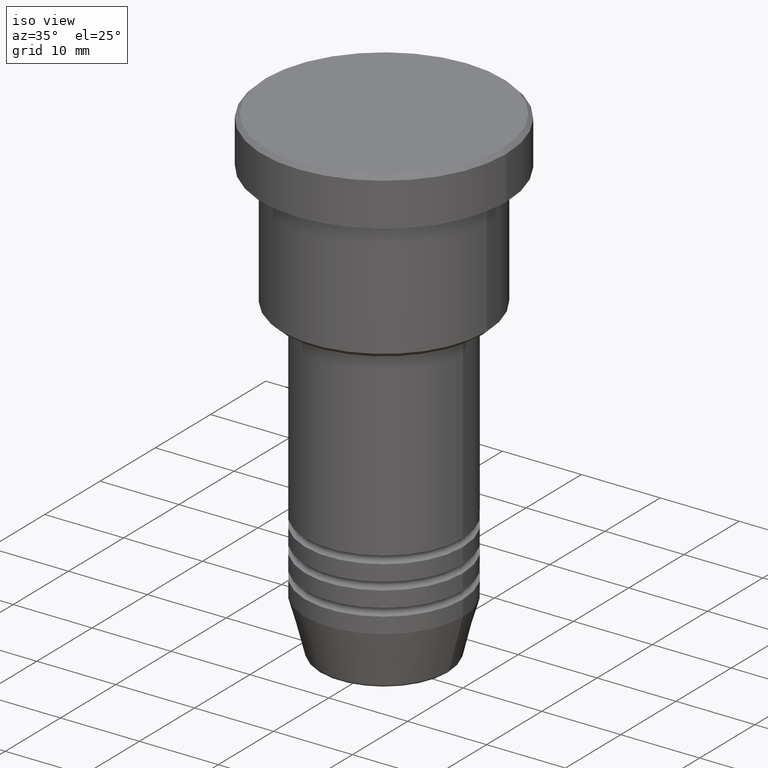
[diagram: clean part render]
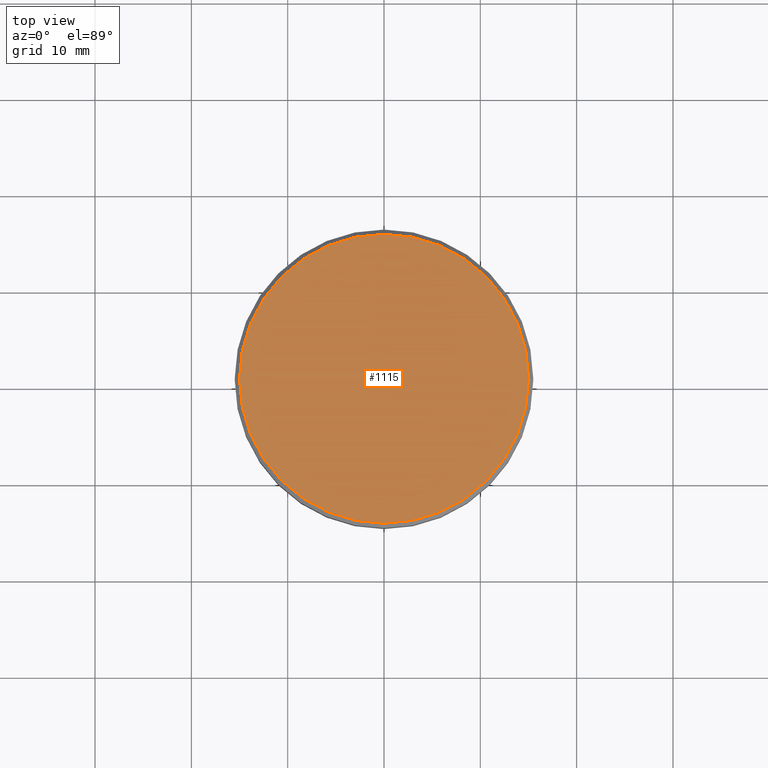
[diagram: tour spotlight — one face highlighted and labeled with its STEP entity id]
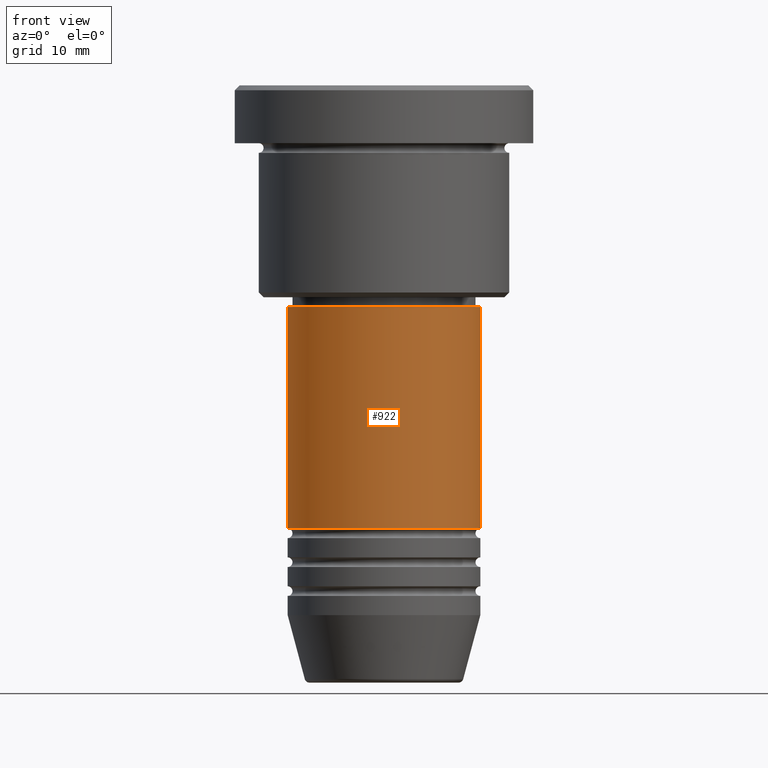
[diagram: tour spotlight — one face highlighted and labeled with its STEP entity id]
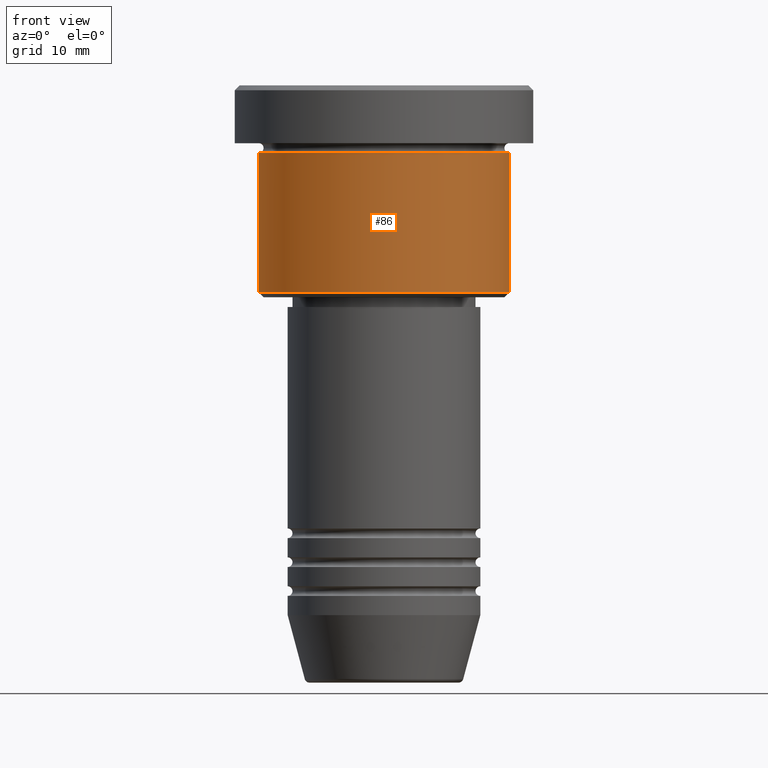
[diagram: tour spotlight — one face highlighted and labeled with its STEP entity id]
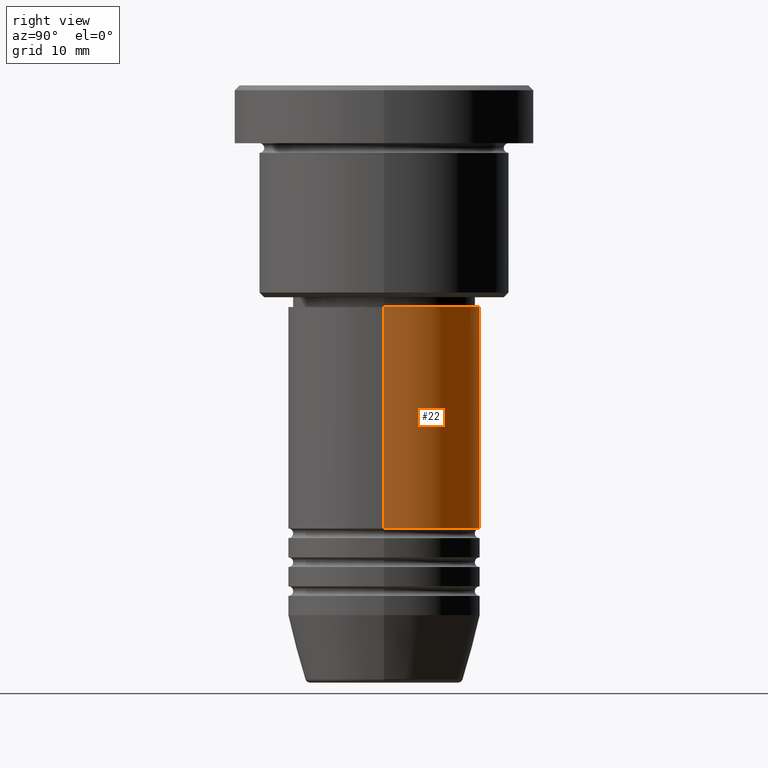
[diagram: tour spotlight — one face highlighted and labeled with its STEP entity id]
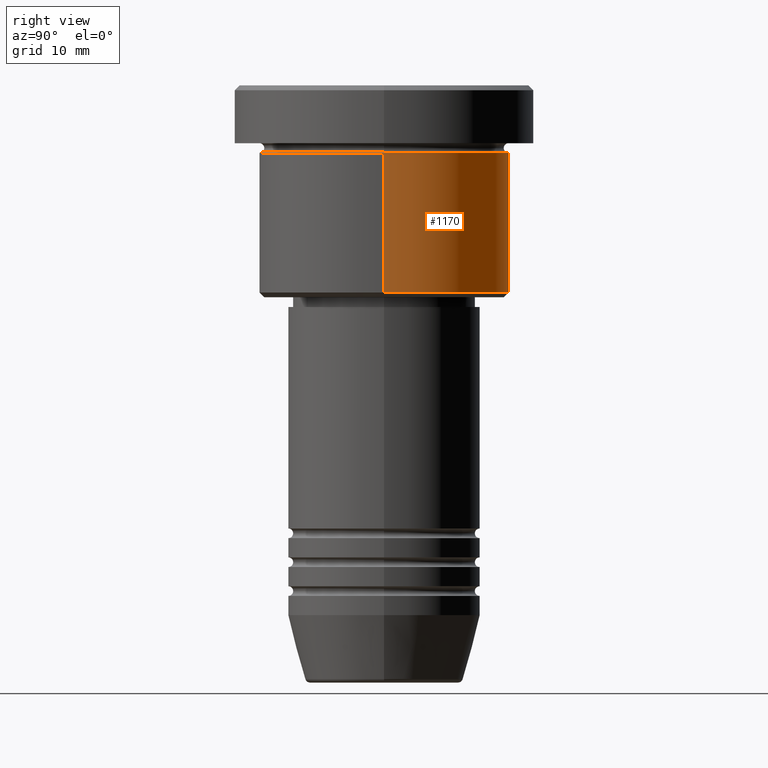
[diagram: tour spotlight — one face highlighted and labeled with its STEP entity id]
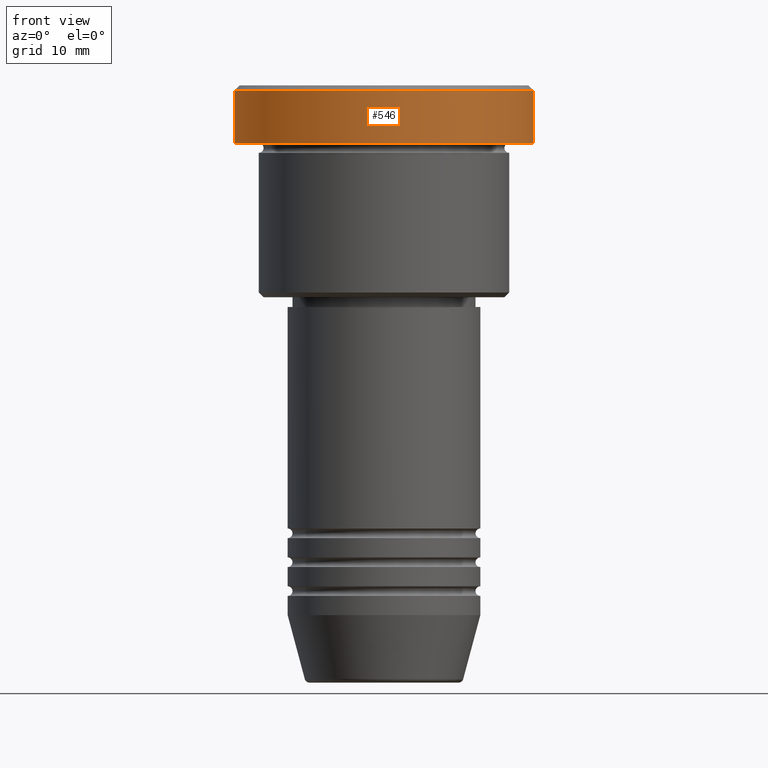
[diagram: tour spotlight — one face highlighted and labeled with its STEP entity id]
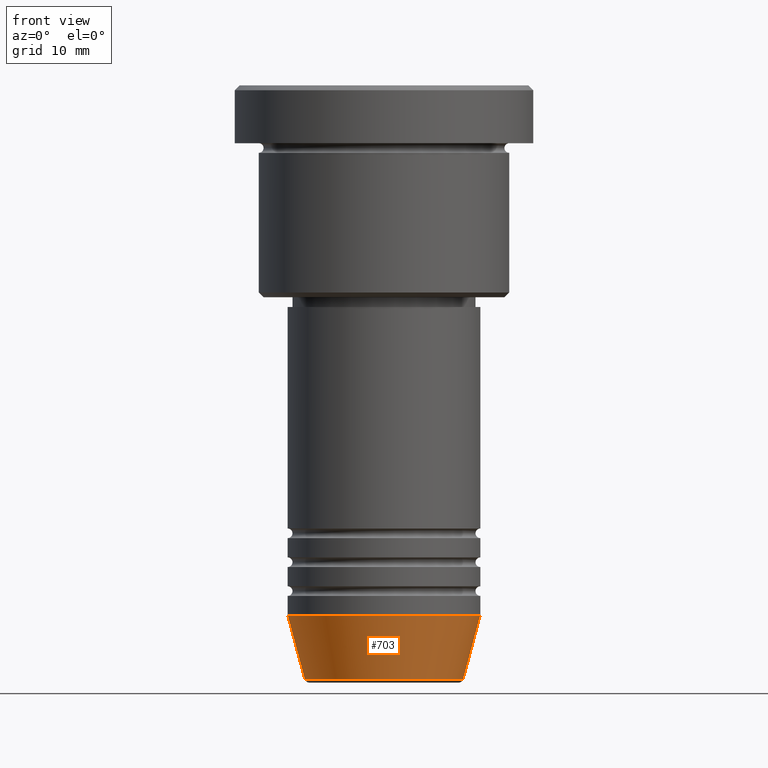
[diagram: tour spotlight — one face highlighted and labeled with its STEP entity id]
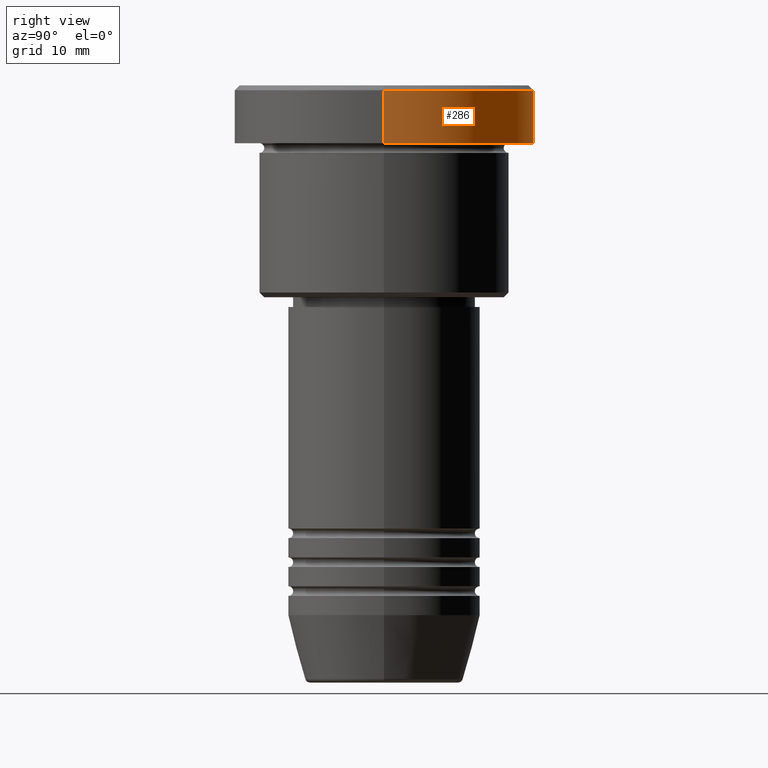
[diagram: tour spotlight — one face highlighted and labeled with its STEP entity id]
A machine part: a face-by-face anatomy tour. The part has 43 B-rep faces; the first image is the clean iso view, then the 8 largest visible faces are spotlighted one at a time (largest first), each with its STEP entity span.

Face 1 — top view, entity #1115. In plain terms, the highlighted planar face has unit normal (0, -0, 1).
Definition (entity closure, byte-faithful):
#3 = DIRECTION ( 'NONE',  ( 1.000000000000000000, 0.000000000000000000, 0.000000000000000000 ) ) ;
#91 = CARTESIAN_POINT ( 'NONE',  ( 14.99999999999998579, 1.867586368699712587E-15, 0.000000000000000000 ) ) ;
#156 = CIRCLE ( 'NONE', #746, 14.99999999999998579 ) ;
#179 = CARTESIAN_POINT ( 'NONE',  ( 0.000000000000000000, 0.000000000000000000, 0.000000000000000000 ) ) ;
#270 = DIRECTION ( 'NONE',  ( 1.000000000000000000, 0.000000000000000000, 0.000000000000000000 ) ) ;
#308 = CARTESIAN_POINT ( 'NONE',  ( -14.99999999999998579, 0.000000000000000000, 0.000000000000000000 ) ) ;
#385 = DIRECTION ( 'NONE',  ( -0.000000000000000000, -0.000000000000000000, 1.000000000000000000 ) ) ;
#409 = VERTEX_POINT ( 'NONE', #308 ) ;
#453 = PLANE ( 'NONE',  #841 ) ;
#623 = ORIENTED_EDGE ( 'NONE', *, *, #1102, .T. ) ;
#637 = CARTESIAN_POINT ( 'NONE',  ( 0.000000000000000000, 0.000000000000000000, 0.000000000000000000 ) ) ;
#723 = ORIENTED_EDGE ( 'NONE', *, *, #1108, .T. ) ;
#732 = DIRECTION ( 'NONE',  ( 0.000000000000000000, -0.000000000000000000, 1.000000000000000000 ) ) ;
#741 = CARTESIAN_POINT ( 'NONE',  ( 0.000000000000000000, 0.000000000000000000, 0.000000000000000000 ) ) ;
#746 = AXIS2_PLACEMENT_3D ( 'NONE', #179, #385, #270 ) ;
#753 = DIRECTION ( 'NONE',  ( -0.000000000000000000, -0.000000000000000000, 1.000000000000000000 ) ) ;
#818 = FACE_OUTER_BOUND ( 'NONE', #895, .T. ) ;
#841 = AXIS2_PLACEMENT_3D ( 'NONE', #741, #732, #3 ) ;
#895 = EDGE_LOOP ( 'NONE', ( #723, #623 ) ) ;
#936 = AXIS2_PLACEMENT_3D ( 'NONE', #637, #753, #1111 ) ;
#1065 = CIRCLE ( 'NONE', #936, 14.99999999999998579 ) ;
#1091 = VERTEX_POINT ( 'NONE', #91 ) ;
#1102 = EDGE_CURVE ( 'NONE', #1091, #409, #156, .T. ) ;
#1108 = EDGE_CURVE ( 'NONE', #409, #1091, #1065, .T. ) ;
#1111 = DIRECTION ( 'NONE',  ( 1.000000000000000000, 0.000000000000000000, 0.000000000000000000 ) ) ;
#1115 = ADVANCED_FACE ( 'NONE', ( #818 ), #453, .T. ) ;

Face 2 — front view, entity #922. In plain terms, the highlighted cylindrical surface (partial cylindrical patch) has radius 10 mm, axis along (-0, -0, 1).
Definition (entity closure, byte-faithful):
#24 = LINE ( 'NONE', #407, #186 ) ;
#31 = ORIENTED_EDGE ( 'NONE', *, *, #350, .F. ) ;
#75 = CARTESIAN_POINT ( 'NONE',  ( -10.00000000000000000, 1.224646799147353256E-15, 0.000000000000000000 ) ) ;
#80 = VERTEX_POINT ( 'NONE', #740 ) ;
#100 = VERTEX_POINT ( 'NONE', #366 ) ;
#119 = VERTEX_POINT ( 'NONE', #384 ) ;
#122 = DIRECTION ( 'NONE',  ( -0.000000000000000000, -0.000000000000000000, 1.000000000000000000 ) ) ;
#125 = CARTESIAN_POINT ( 'NONE',  ( 0.000000000000000000, 0.000000000000000000, -23.00000000000000711 ) ) ;
#176 = EDGE_CURVE ( 'NONE', #80, #119, #258, .T. ) ;
#186 = VECTOR ( 'NONE', #294, 1000.000000000000000 ) ;
#198 = ORIENTED_EDGE ( 'NONE', *, *, #780, .F. ) ;
#258 = CIRCLE ( 'NONE', #801, 10.00000000000000000 ) ;
#287 = CARTESIAN_POINT ( 'NONE',  ( -10.00000000000000000, 1.224646799147353256E-15, -23.00000000000000711 ) ) ;
#294 = DIRECTION ( 'NONE',  ( -0.000000000000000000, -0.000000000000000000, 1.000000000000000000 ) ) ;
#301 = EDGE_LOOP ( 'NONE', ( #31, #696, #639, #198 ) ) ;
#312 = CYLINDRICAL_SURFACE ( 'NONE', #954, 10.00000000000000000 ) ;
#326 = FACE_OUTER_BOUND ( 'NONE', #301, .T. ) ;
#350 = EDGE_CURVE ( 'NONE', #80, #815, #451, .T. ) ;
#366 = CARTESIAN_POINT ( 'NONE',  ( 10.00000000000000000, 0.000000000000000000, -23.00000000000000711 ) ) ;
#384 = CARTESIAN_POINT ( 'NONE',  ( 10.00000000000000000, 0.000000000000000000, -45.99999999999997868 ) ) ;
#407 = CARTESIAN_POINT ( 'NONE',  ( 10.00000000000000000, 0.000000000000000000, 0.000000000000000000 ) ) ;
#434 = EDGE_CURVE ( 'NONE', #119, #100, #24, .T. ) ;
#451 = LINE ( 'NONE', #75, #585 ) ;
#585 = VECTOR ( 'NONE', #921, 1000.000000000000000 ) ;
#609 = CARTESIAN_POINT ( 'NONE',  ( 0.000000000000000000, 0.000000000000000000, 0.000000000000000000 ) ) ;
#639 = ORIENTED_EDGE ( 'NONE', *, *, #434, .T. ) ;
#675 = DIRECTION ( 'NONE',  ( 1.000000000000000000, 0.000000000000000000, 0.000000000000000000 ) ) ;
#696 = ORIENTED_EDGE ( 'NONE', *, *, #176, .T. ) ;
#740 = CARTESIAN_POINT ( 'NONE',  ( -10.00000000000000000, 1.224646799147353256E-15, -45.99999999999997868 ) ) ;
#755 = DIRECTION ( 'NONE',  ( -0.000000000000000000, -0.000000000000000000, 1.000000000000000000 ) ) ;
#765 = CIRCLE ( 'NONE', #916, 10.00000000000000000 ) ;
#780 = EDGE_CURVE ( 'NONE', #815, #100, #765, .T. ) ;
#801 = AXIS2_PLACEMENT_3D ( 'NONE', #940, #122, #675 ) ;
#815 = VERTEX_POINT ( 'NONE', #287 ) ;
#838 = DIRECTION ( 'NONE',  ( 1.000000000000000000, 0.000000000000000000, 0.000000000000000000 ) ) ;
#916 = AXIS2_PLACEMENT_3D ( 'NONE', #125, #755, #838 ) ;
#921 = DIRECTION ( 'NONE',  ( -0.000000000000000000, -0.000000000000000000, 1.000000000000000000 ) ) ;
#922 = ADVANCED_FACE ( 'NONE', ( #326 ), #312, .T. ) ;
#940 = CARTESIAN_POINT ( 'NONE',  ( 0.000000000000000000, 0.000000000000000000, -45.99999999999997868 ) ) ;
#954 = AXIS2_PLACEMENT_3D ( 'NONE', #609, #1135, #1152 ) ;
#1135 = DIRECTION ( 'NONE',  ( -0.000000000000000000, -0.000000000000000000, 1.000000000000000000 ) ) ;
#1152 = DIRECTION ( 'NONE',  ( 1.000000000000000000, 0.000000000000000000, 0.000000000000000000 ) ) ;

Face 3 — front view, entity #86. In plain terms, the highlighted cylindrical surface (partial cylindrical patch) has radius 13 mm, axis along (-0, -0, 1).
Definition (entity closure, byte-faithful):
#13 = AXIS2_PLACEMENT_3D ( 'NONE', #707, #159, #1167 ) ;
#43 = DIRECTION ( 'NONE',  ( -0.000000000000000000, -0.000000000000000000, 1.000000000000000000 ) ) ;
#85 = EDGE_LOOP ( 'NONE', ( #493, #580, #1158, #251 ) ) ;
#86 = ADVANCED_FACE ( 'NONE', ( #1179 ), #912, .T. ) ;
#93 = VERTEX_POINT ( 'NONE', #458 ) ;
#159 = DIRECTION ( 'NONE',  ( -0.000000000000000000, -0.000000000000000000, 1.000000000000000000 ) ) ;
#190 = CARTESIAN_POINT ( 'NONE',  ( 0.000000000000000000, 0.000000000000000000, 0.000000000000000000 ) ) ;
#236 = DIRECTION ( 'NONE',  ( -0.000000000000000000, -0.000000000000000000, 1.000000000000000000 ) ) ;
#251 = ORIENTED_EDGE ( 'NONE', *, *, #606, .F. ) ;
#256 = VERTEX_POINT ( 'NONE', #442 ) ;
#296 = EDGE_CURVE ( 'NONE', #691, #256, #1041, .T. ) ;
#358 = CIRCLE ( 'NONE', #417, 13.00000000000000000 ) ;
#417 = AXIS2_PLACEMENT_3D ( 'NONE', #714, #43, #1068 ) ;
#440 = LINE ( 'NONE', #807, #567 ) ;
#442 = CARTESIAN_POINT ( 'NONE',  ( 13.00000000000000000, 0.000000000000000000, -21.49999999999998579 ) ) ;
#458 = CARTESIAN_POINT ( 'NONE',  ( 13.00000000000000000, 0.000000000000000000, -6.999999999999995559 ) ) ;
#493 = ORIENTED_EDGE ( 'NONE', *, *, #943, .F. ) ;
#567 = VECTOR ( 'NONE', #904, 1000.000000000000000 ) ;
#580 = ORIENTED_EDGE ( 'NONE', *, *, #296, .T. ) ;
#606 = EDGE_CURVE ( 'NONE', #915, #93, #358, .T. ) ;
#620 = EDGE_CURVE ( 'NONE', #256, #93, #440, .T. ) ;
#628 = VECTOR ( 'NONE', #236, 1000.000000000000000 ) ;
#633 = CARTESIAN_POINT ( 'NONE',  ( -13.00000000000000000, 1.592040838891559095E-15, -6.999999999999995559 ) ) ;
#691 = VERTEX_POINT ( 'NONE', #1176 ) ;
#707 = CARTESIAN_POINT ( 'NONE',  ( 0.000000000000000000, 0.000000000000000000, -21.49999999999998579 ) ) ;
#714 = CARTESIAN_POINT ( 'NONE',  ( 0.000000000000000000, 0.000000000000000000, -6.999999999999995559 ) ) ;
#799 = AXIS2_PLACEMENT_3D ( 'NONE', #190, #1105, #929 ) ;
#807 = CARTESIAN_POINT ( 'NONE',  ( 13.00000000000000000, 0.000000000000000000, 0.000000000000000000 ) ) ;
#864 = CARTESIAN_POINT ( 'NONE',  ( -13.00000000000000000, 1.592040838891559095E-15, 0.000000000000000000 ) ) ;
#904 = DIRECTION ( 'NONE',  ( -0.000000000000000000, -0.000000000000000000, 1.000000000000000000 ) ) ;
#912 = CYLINDRICAL_SURFACE ( 'NONE', #799, 13.00000000000000000 ) ;
#915 = VERTEX_POINT ( 'NONE', #633 ) ;
#929 = DIRECTION ( 'NONE',  ( 1.000000000000000000, 0.000000000000000000, 0.000000000000000000 ) ) ;
#943 = EDGE_CURVE ( 'NONE', #691, #915, #970, .T. ) ;
#970 = LINE ( 'NONE', #864, #628 ) ;
#1041 = CIRCLE ( 'NONE', #13, 13.00000000000000000 ) ;
#1068 = DIRECTION ( 'NONE',  ( 1.000000000000000000, 0.000000000000000000, 0.000000000000000000 ) ) ;
#1105 = DIRECTION ( 'NONE',  ( -0.000000000000000000, -0.000000000000000000, 1.000000000000000000 ) ) ;
#1158 = ORIENTED_EDGE ( 'NONE', *, *, #620, .T. ) ;
#1167 = DIRECTION ( 'NONE',  ( -1.000000000000000000, 0.000000000000000000, 0.000000000000000000 ) ) ;
#1176 = CARTESIAN_POINT ( 'NONE',  ( -13.00000000000000000, 1.592040838891559095E-15, -21.49999999999998579 ) ) ;
#1179 = FACE_OUTER_BOUND ( 'NONE', #85, .T. ) ;

Face 4 — right view, entity #22. In plain terms, the highlighted cylindrical surface (partial cylindrical patch) has radius 10 mm, axis along (-0, -0, 1).
Definition (entity closure, byte-faithful):
#22 = ADVANCED_FACE ( 'NONE', ( #1078 ), #538, .T. ) ;
#24 = LINE ( 'NONE', #407, #186 ) ;
#75 = CARTESIAN_POINT ( 'NONE',  ( -10.00000000000000000, 1.224646799147353256E-15, 0.000000000000000000 ) ) ;
#80 = VERTEX_POINT ( 'NONE', #740 ) ;
#99 = DIRECTION ( 'NONE',  ( 1.000000000000000000, 0.000000000000000000, 0.000000000000000000 ) ) ;
#100 = VERTEX_POINT ( 'NONE', #366 ) ;
#119 = VERTEX_POINT ( 'NONE', #384 ) ;
#135 = CARTESIAN_POINT ( 'NONE',  ( 0.000000000000000000, 0.000000000000000000, -45.99999999999997868 ) ) ;
#186 = VECTOR ( 'NONE', #294, 1000.000000000000000 ) ;
#194 = DIRECTION ( 'NONE',  ( 1.000000000000000000, 0.000000000000000000, 0.000000000000000000 ) ) ;
#269 = DIRECTION ( 'NONE',  ( 1.000000000000000000, 0.000000000000000000, 0.000000000000000000 ) ) ;
#287 = CARTESIAN_POINT ( 'NONE',  ( -10.00000000000000000, 1.224646799147353256E-15, -23.00000000000000711 ) ) ;
#294 = DIRECTION ( 'NONE',  ( -0.000000000000000000, -0.000000000000000000, 1.000000000000000000 ) ) ;
#300 = CIRCLE ( 'NONE', #806, 10.00000000000000000 ) ;
#306 = ORIENTED_EDGE ( 'NONE', *, *, #1042, .F. ) ;
#350 = EDGE_CURVE ( 'NONE', #80, #815, #451, .T. ) ;
#361 = CARTESIAN_POINT ( 'NONE',  ( 0.000000000000000000, 0.000000000000000000, 0.000000000000000000 ) ) ;
#366 = CARTESIAN_POINT ( 'NONE',  ( 10.00000000000000000, 0.000000000000000000, -23.00000000000000711 ) ) ;
#384 = CARTESIAN_POINT ( 'NONE',  ( 10.00000000000000000, 0.000000000000000000, -45.99999999999997868 ) ) ;
#407 = CARTESIAN_POINT ( 'NONE',  ( 10.00000000000000000, 0.000000000000000000, 0.000000000000000000 ) ) ;
#434 = EDGE_CURVE ( 'NONE', #119, #100, #24, .T. ) ;
#445 = EDGE_LOOP ( 'NONE', ( #480, #725, #306, #991 ) ) ;
#451 = LINE ( 'NONE', #75, #585 ) ;
#462 = EDGE_CURVE ( 'NONE', #119, #80, #668, .T. ) ;
#480 = ORIENTED_EDGE ( 'NONE', *, *, #462, .T. ) ;
#538 = CYLINDRICAL_SURFACE ( 'NONE', #1138, 10.00000000000000000 ) ;
#585 = VECTOR ( 'NONE', #921, 1000.000000000000000 ) ;
#668 = CIRCLE ( 'NONE', #803, 10.00000000000000000 ) ;
#725 = ORIENTED_EDGE ( 'NONE', *, *, #350, .T. ) ;
#740 = CARTESIAN_POINT ( 'NONE',  ( -10.00000000000000000, 1.224646799147353256E-15, -45.99999999999997868 ) ) ;
#803 = AXIS2_PLACEMENT_3D ( 'NONE', #135, #1017, #194 ) ;
#806 = AXIS2_PLACEMENT_3D ( 'NONE', #963, #1001, #99 ) ;
#815 = VERTEX_POINT ( 'NONE', #287 ) ;
#834 = DIRECTION ( 'NONE',  ( -0.000000000000000000, -0.000000000000000000, 1.000000000000000000 ) ) ;
#921 = DIRECTION ( 'NONE',  ( -0.000000000000000000, -0.000000000000000000, 1.000000000000000000 ) ) ;
#963 = CARTESIAN_POINT ( 'NONE',  ( 0.000000000000000000, 0.000000000000000000, -23.00000000000000711 ) ) ;
#991 = ORIENTED_EDGE ( 'NONE', *, *, #434, .F. ) ;
#1001 = DIRECTION ( 'NONE',  ( -0.000000000000000000, -0.000000000000000000, 1.000000000000000000 ) ) ;
#1017 = DIRECTION ( 'NONE',  ( -0.000000000000000000, -0.000000000000000000, 1.000000000000000000 ) ) ;
#1042 = EDGE_CURVE ( 'NONE', #100, #815, #300, .T. ) ;
#1078 = FACE_OUTER_BOUND ( 'NONE', #445, .T. ) ;
#1138 = AXIS2_PLACEMENT_3D ( 'NONE', #361, #834, #269 ) ;

Face 5 — right view, entity #1170. In plain terms, the highlighted cylindrical surface (partial cylindrical patch) has radius 13 mm, axis along (-0, -0, 1).
Definition (entity closure, byte-faithful):
#14 = CIRCLE ( 'NONE', #113, 13.00000000000000000 ) ;
#38 = ORIENTED_EDGE ( 'NONE', *, *, #989, .T. ) ;
#93 = VERTEX_POINT ( 'NONE', #458 ) ;
#113 = AXIS2_PLACEMENT_3D ( 'NONE', #1183, #635, #189 ) ;
#189 = DIRECTION ( 'NONE',  ( 1.000000000000000000, 0.000000000000000000, 0.000000000000000000 ) ) ;
#236 = DIRECTION ( 'NONE',  ( -0.000000000000000000, -0.000000000000000000, 1.000000000000000000 ) ) ;
#256 = VERTEX_POINT ( 'NONE', #442 ) ;
#262 = AXIS2_PLACEMENT_3D ( 'NONE', #600, #779, #502 ) ;
#321 = AXIS2_PLACEMENT_3D ( 'NONE', #682, #575, #1036 ) ;
#440 = LINE ( 'NONE', #807, #567 ) ;
#442 = CARTESIAN_POINT ( 'NONE',  ( 13.00000000000000000, 0.000000000000000000, -21.49999999999998579 ) ) ;
#458 = CARTESIAN_POINT ( 'NONE',  ( 13.00000000000000000, 0.000000000000000000, -6.999999999999995559 ) ) ;
#485 = CYLINDRICAL_SURFACE ( 'NONE', #321, 13.00000000000000000 ) ;
#502 = DIRECTION ( 'NONE',  ( -1.000000000000000000, 0.000000000000000000, 0.000000000000000000 ) ) ;
#567 = VECTOR ( 'NONE', #904, 1000.000000000000000 ) ;
#571 = ORIENTED_EDGE ( 'NONE', *, *, #756, .F. ) ;
#575 = DIRECTION ( 'NONE',  ( -0.000000000000000000, -0.000000000000000000, 1.000000000000000000 ) ) ;
#600 = CARTESIAN_POINT ( 'NONE',  ( 0.000000000000000000, 0.000000000000000000, -21.49999999999998579 ) ) ;
#620 = EDGE_CURVE ( 'NONE', #256, #93, #440, .T. ) ;
#628 = VECTOR ( 'NONE', #236, 1000.000000000000000 ) ;
#633 = CARTESIAN_POINT ( 'NONE',  ( -13.00000000000000000, 1.592040838891559095E-15, -6.999999999999995559 ) ) ;
#635 = DIRECTION ( 'NONE',  ( -0.000000000000000000, -0.000000000000000000, 1.000000000000000000 ) ) ;
#682 = CARTESIAN_POINT ( 'NONE',  ( 0.000000000000000000, 0.000000000000000000, 0.000000000000000000 ) ) ;
#691 = VERTEX_POINT ( 'NONE', #1176 ) ;
#727 = CIRCLE ( 'NONE', #262, 13.00000000000000000 ) ;
#731 = EDGE_LOOP ( 'NONE', ( #38, #978, #571, #955 ) ) ;
#756 = EDGE_CURVE ( 'NONE', #93, #915, #14, .T. ) ;
#779 = DIRECTION ( 'NONE',  ( -0.000000000000000000, -0.000000000000000000, 1.000000000000000000 ) ) ;
#807 = CARTESIAN_POINT ( 'NONE',  ( 13.00000000000000000, 0.000000000000000000, 0.000000000000000000 ) ) ;
#864 = CARTESIAN_POINT ( 'NONE',  ( -13.00000000000000000, 1.592040838891559095E-15, 0.000000000000000000 ) ) ;
#904 = DIRECTION ( 'NONE',  ( -0.000000000000000000, -0.000000000000000000, 1.000000000000000000 ) ) ;
#915 = VERTEX_POINT ( 'NONE', #633 ) ;
#943 = EDGE_CURVE ( 'NONE', #691, #915, #970, .T. ) ;
#955 = ORIENTED_EDGE ( 'NONE', *, *, #620, .F. ) ;
#970 = LINE ( 'NONE', #864, #628 ) ;
#978 = ORIENTED_EDGE ( 'NONE', *, *, #943, .T. ) ;
#989 = EDGE_CURVE ( 'NONE', #256, #691, #727, .T. ) ;
#1036 = DIRECTION ( 'NONE',  ( 1.000000000000000000, 0.000000000000000000, 0.000000000000000000 ) ) ;
#1117 = FACE_OUTER_BOUND ( 'NONE', #731, .T. ) ;
#1170 = ADVANCED_FACE ( 'NONE', ( #1117 ), #485, .T. ) ;
#1176 = CARTESIAN_POINT ( 'NONE',  ( -13.00000000000000000, 1.592040838891559095E-15, -21.49999999999998579 ) ) ;
#1183 = CARTESIAN_POINT ( 'NONE',  ( 0.000000000000000000, 0.000000000000000000, -6.999999999999995559 ) ) ;

Face 6 — front view, entity #546. In plain terms, the highlighted cylindrical surface (partial cylindrical patch) has radius 15.5 mm, axis along (-0, -0, 1).
Definition (entity closure, byte-faithful):
#7 = LINE ( 'NONE', #906, #435 ) ;
#59 = EDGE_CURVE ( 'NONE', #671, #759, #7, .T. ) ;
#193 = DIRECTION ( 'NONE',  ( -0.000000000000000000, -0.000000000000000000, 1.000000000000000000 ) ) ;
#231 = DIRECTION ( 'NONE',  ( -0.000000000000000000, -0.000000000000000000, 1.000000000000000000 ) ) ;
#288 = DIRECTION ( 'NONE',  ( -0.000000000000000000, -0.000000000000000000, 1.000000000000000000 ) ) ;
#289 = CARTESIAN_POINT ( 'NONE',  ( -15.50000000000000000, 1.898202538678397557E-15, -0.5000000000000196509 ) ) ;
#333 = FACE_OUTER_BOUND ( 'NONE', #1052, .T. ) ;
#359 = VECTOR ( 'NONE', #1146, 1000.000000000000000 ) ;
#367 = CARTESIAN_POINT ( 'NONE',  ( -15.50000000000000000, 1.898202538678397557E-15, -5.999999999999995559 ) ) ;
#386 = ORIENTED_EDGE ( 'NONE', *, *, #59, .T. ) ;
#391 = ORIENTED_EDGE ( 'NONE', *, *, #891, .T. ) ;
#435 = VECTOR ( 'NONE', #288, 1000.000000000000000 ) ;
#439 = AXIS2_PLACEMENT_3D ( 'NONE', #673, #193, #565 ) ;
#525 = DIRECTION ( 'NONE',  ( 1.000000000000000000, 0.000000000000000000, 0.000000000000000000 ) ) ;
#546 = ADVANCED_FACE ( 'NONE', ( #333 ), #781, .T. ) ;
#551 = AXIS2_PLACEMENT_3D ( 'NONE', #938, #769, #849 ) ;
#555 = CARTESIAN_POINT ( 'NONE',  ( 15.50000000000000000, 0.000000000000000000, -0.5000000000000196509 ) ) ;
#565 = DIRECTION ( 'NONE',  ( 1.000000000000000000, 0.000000000000000000, 0.000000000000000000 ) ) ;
#578 = LINE ( 'NONE', #944, #359 ) ;
#671 = VERTEX_POINT ( 'NONE', #1012 ) ;
#673 = CARTESIAN_POINT ( 'NONE',  ( 0.000000000000000000, 0.000000000000000000, -5.999999999999995559 ) ) ;
#704 = ORIENTED_EDGE ( 'NONE', *, *, #909, .F. ) ;
#758 = ORIENTED_EDGE ( 'NONE', *, *, #850, .T. ) ;
#759 = VERTEX_POINT ( 'NONE', #555 ) ;
#769 = DIRECTION ( 'NONE',  ( 0.000000000000000000, 0.000000000000000000, -1.000000000000000000 ) ) ;
#781 = CYLINDRICAL_SURFACE ( 'NONE', #933, 15.50000000000000000 ) ;
#822 = CIRCLE ( 'NONE', #551, 15.50000000000000000 ) ;
#849 = DIRECTION ( 'NONE',  ( 1.000000000000000000, 0.000000000000000000, 0.000000000000000000 ) ) ;
#850 = EDGE_CURVE ( 'NONE', #1132, #671, #953, .T. ) ;
#891 = EDGE_CURVE ( 'NONE', #759, #1070, #822, .T. ) ;
#906 = CARTESIAN_POINT ( 'NONE',  ( 15.50000000000000000, 0.000000000000000000, 0.000000000000000000 ) ) ;
#909 = EDGE_CURVE ( 'NONE', #1132, #1070, #578, .T. ) ;
#933 = AXIS2_PLACEMENT_3D ( 'NONE', #1142, #231, #525 ) ;
#938 = CARTESIAN_POINT ( 'NONE',  ( 0.000000000000000000, 0.000000000000000000, -0.5000000000000196509 ) ) ;
#944 = CARTESIAN_POINT ( 'NONE',  ( -15.50000000000000000, 1.898202538678397557E-15, 0.000000000000000000 ) ) ;
#953 = CIRCLE ( 'NONE', #439, 15.50000000000000000 ) ;
#1012 = CARTESIAN_POINT ( 'NONE',  ( 15.50000000000000000, 0.000000000000000000, -5.999999999999995559 ) ) ;
#1052 = EDGE_LOOP ( 'NONE', ( #704, #758, #386, #391 ) ) ;
#1070 = VERTEX_POINT ( 'NONE', #289 ) ;
#1132 = VERTEX_POINT ( 'NONE', #367 ) ;
#1142 = CARTESIAN_POINT ( 'NONE',  ( 0.000000000000000000, 0.000000000000000000, 0.000000000000000000 ) ) ;
#1146 = DIRECTION ( 'NONE',  ( -0.000000000000000000, -0.000000000000000000, 1.000000000000000000 ) ) ;

Face 7 — front view, entity #703. In plain terms, the highlighted conical surface has half-angle 15 deg.
Definition (entity closure, byte-faithful):
#6 = EDGE_CURVE ( 'NONE', #618, #454, #274, .T. ) ;
#68 = CONICAL_SURFACE ( 'NONE', #90, 10.00000000000000000, 0.2617993877991500740 ) ;
#90 = AXIS2_PLACEMENT_3D ( 'NONE', #722, #95, #629 ) ;
#95 = DIRECTION ( 'NONE',  ( -0.000000000000000000, -0.000000000000000000, 1.000000000000000000 ) ) ;
#142 = ORIENTED_EDGE ( 'NONE', *, *, #520, .T. ) ;
#182 = CARTESIAN_POINT ( 'NONE',  ( -10.00000000000000000, 1.224646799147353256E-15, -55.00000000000000000 ) ) ;
#230 = CARTESIAN_POINT ( 'NONE',  ( 0.000000000000000000, 0.000000000000000000, -55.00000000000000000 ) ) ;
#253 = FACE_OUTER_BOUND ( 'NONE', #524, .T. ) ;
#274 = LINE ( 'NONE', #659, #1159 ) ;
#318 = ORIENTED_EDGE ( 'NONE', *, *, #638, .F. ) ;
#342 = AXIS2_PLACEMENT_3D ( 'NONE', #230, #353, #508 ) ;
#353 = DIRECTION ( 'NONE',  ( -0.000000000000000000, -0.000000000000000000, 1.000000000000000000 ) ) ;
#393 = CARTESIAN_POINT ( 'NONE',  ( -8.223655072137191269, 1.115877042642912054E-15, -61.62940952255126348 ) ) ;
#441 = CIRCLE ( 'NONE', #342, 10.00000000000000000 ) ;
#454 = VERTEX_POINT ( 'NONE', #583 ) ;
#508 = DIRECTION ( 'NONE',  ( 1.000000000000000000, 0.000000000000000000, 0.000000000000000000 ) ) ;
#520 = EDGE_CURVE ( 'NONE', #813, #618, #1063, .T. ) ;
#524 = EDGE_LOOP ( 'NONE', ( #318, #142, #903, #811 ) ) ;
#549 = AXIS2_PLACEMENT_3D ( 'NONE', #957, #980, #798 ) ;
#583 = CARTESIAN_POINT ( 'NONE',  ( 10.00000000000000000, 0.000000000000000000, -55.00000000000000000 ) ) ;
#618 = VERTEX_POINT ( 'NONE', #1153 ) ;
#629 = DIRECTION ( 'NONE',  ( 1.000000000000000000, 0.000000000000000000, 0.000000000000000000 ) ) ;
#638 = EDGE_CURVE ( 'NONE', #813, #1018, #640, .T. ) ;
#640 = LINE ( 'NONE', #182, #1162 ) ;
#653 = DIRECTION ( 'NONE',  ( 0.2588190451025213501, 0.000000000000000000, 0.9659258262890680902 ) ) ;
#659 = CARTESIAN_POINT ( 'NONE',  ( 10.00000000000000000, 0.000000000000000000, -55.00000000000000000 ) ) ;
#685 = CARTESIAN_POINT ( 'NONE',  ( -10.00000000000000000, 1.224646799147353256E-15, -55.00000000000000000 ) ) ;
#703 = ADVANCED_FACE ( 'NONE', ( #253 ), #68, .T. ) ;
#722 = CARTESIAN_POINT ( 'NONE',  ( 0.000000000000000000, 0.000000000000000000, -55.00000000000000000 ) ) ;
#798 = DIRECTION ( 'NONE',  ( 1.000000000000000000, 0.000000000000000000, 0.000000000000000000 ) ) ;
#811 = ORIENTED_EDGE ( 'NONE', *, *, #982, .F. ) ;
#813 = VERTEX_POINT ( 'NONE', #393 ) ;
#903 = ORIENTED_EDGE ( 'NONE', *, *, #6, .T. ) ;
#957 = CARTESIAN_POINT ( 'NONE',  ( 0.000000000000000000, 0.000000000000000000, -61.62940952255126348 ) ) ;
#980 = DIRECTION ( 'NONE',  ( -0.000000000000000000, -0.000000000000000000, 1.000000000000000000 ) ) ;
#982 = EDGE_CURVE ( 'NONE', #1018, #454, #441, .T. ) ;
#1018 = VERTEX_POINT ( 'NONE', #685 ) ;
#1063 = CIRCLE ( 'NONE', #549, 8.223655072137191269 ) ;
#1084 = DIRECTION ( 'NONE',  ( -0.2588190451025213501, 3.169619151431772337E-17, 0.9659258262890680902 ) ) ;
#1153 = CARTESIAN_POINT ( 'NONE',  ( 8.223655072137191269, 0.000000000000000000, -61.62940952255126348 ) ) ;
#1159 = VECTOR ( 'NONE', #653, 1000.000000000000000 ) ;
#1162 = VECTOR ( 'NONE', #1084, 1000.000000000000000 ) ;

Face 8 — right view, entity #286. In plain terms, the highlighted cylindrical surface (partial cylindrical patch) has radius 15.5 mm, axis along (-0, -0, 1).
Definition (entity closure, byte-faithful):
#7 = LINE ( 'NONE', #906, #435 ) ;
#51 = CIRCLE ( 'NONE', #859, 15.50000000000000000 ) ;
#59 = EDGE_CURVE ( 'NONE', #671, #759, #7, .T. ) ;
#69 = DIRECTION ( 'NONE',  ( -0.000000000000000000, -0.000000000000000000, 1.000000000000000000 ) ) ;
#101 = DIRECTION ( 'NONE',  ( 1.000000000000000000, 0.000000000000000000, 0.000000000000000000 ) ) ;
#166 = CARTESIAN_POINT ( 'NONE',  ( 0.000000000000000000, 0.000000000000000000, -0.5000000000000196509 ) ) ;
#242 = AXIS2_PLACEMENT_3D ( 'NONE', #166, #547, #101 ) ;
#286 = ADVANCED_FACE ( 'NONE', ( #522 ), #616, .T. ) ;
#288 = DIRECTION ( 'NONE',  ( -0.000000000000000000, -0.000000000000000000, 1.000000000000000000 ) ) ;
#289 = CARTESIAN_POINT ( 'NONE',  ( -15.50000000000000000, 1.898202538678397557E-15, -0.5000000000000196509 ) ) ;
#359 = VECTOR ( 'NONE', #1146, 1000.000000000000000 ) ;
#367 = CARTESIAN_POINT ( 'NONE',  ( -15.50000000000000000, 1.898202538678397557E-15, -5.999999999999995559 ) ) ;
#375 = AXIS2_PLACEMENT_3D ( 'NONE', #621, #69, #808 ) ;
#435 = VECTOR ( 'NONE', #288, 1000.000000000000000 ) ;
#448 = ORIENTED_EDGE ( 'NONE', *, *, #717, .T. ) ;
#495 = ORIENTED_EDGE ( 'NONE', *, *, #564, .T. ) ;
#522 = FACE_OUTER_BOUND ( 'NONE', #738, .T. ) ;
#547 = DIRECTION ( 'NONE',  ( 0.000000000000000000, 0.000000000000000000, -1.000000000000000000 ) ) ;
#555 = CARTESIAN_POINT ( 'NONE',  ( 15.50000000000000000, 0.000000000000000000, -0.5000000000000196509 ) ) ;
#564 = EDGE_CURVE ( 'NONE', #671, #1132, #51, .T. ) ;
#578 = LINE ( 'NONE', #944, #359 ) ;
#616 = CYLINDRICAL_SURFACE ( 'NONE', #375, 15.50000000000000000 ) ;
#621 = CARTESIAN_POINT ( 'NONE',  ( 0.000000000000000000, 0.000000000000000000, 0.000000000000000000 ) ) ;
#671 = VERTEX_POINT ( 'NONE', #1012 ) ;
#717 = EDGE_CURVE ( 'NONE', #1070, #759, #1010, .T. ) ;
#738 = EDGE_LOOP ( 'NONE', ( #495, #830, #448, #1029 ) ) ;
#759 = VERTEX_POINT ( 'NONE', #555 ) ;
#808 = DIRECTION ( 'NONE',  ( 1.000000000000000000, 0.000000000000000000, 0.000000000000000000 ) ) ;
#830 = ORIENTED_EDGE ( 'NONE', *, *, #909, .T. ) ;
#859 = AXIS2_PLACEMENT_3D ( 'NONE', #1147, #1160, #889 ) ;
#889 = DIRECTION ( 'NONE',  ( 1.000000000000000000, 0.000000000000000000, 0.000000000000000000 ) ) ;
#906 = CARTESIAN_POINT ( 'NONE',  ( 15.50000000000000000, 0.000000000000000000, 0.000000000000000000 ) ) ;
#909 = EDGE_CURVE ( 'NONE', #1132, #1070, #578, .T. ) ;
#944 = CARTESIAN_POINT ( 'NONE',  ( -15.50000000000000000, 1.898202538678397557E-15, 0.000000000000000000 ) ) ;
#1010 = CIRCLE ( 'NONE', #242, 15.50000000000000000 ) ;
#1012 = CARTESIAN_POINT ( 'NONE',  ( 15.50000000000000000, 0.000000000000000000, -5.999999999999995559 ) ) ;
#1029 = ORIENTED_EDGE ( 'NONE', *, *, #59, .F. ) ;
#1070 = VERTEX_POINT ( 'NONE', #289 ) ;
#1132 = VERTEX_POINT ( 'NONE', #367 ) ;
#1146 = DIRECTION ( 'NONE',  ( -0.000000000000000000, -0.000000000000000000, 1.000000000000000000 ) ) ;
#1147 = CARTESIAN_POINT ( 'NONE',  ( 0.000000000000000000, 0.000000000000000000, -5.999999999999995559 ) ) ;
#1160 = DIRECTION ( 'NONE',  ( -0.000000000000000000, -0.000000000000000000, 1.000000000000000000 ) ) ;